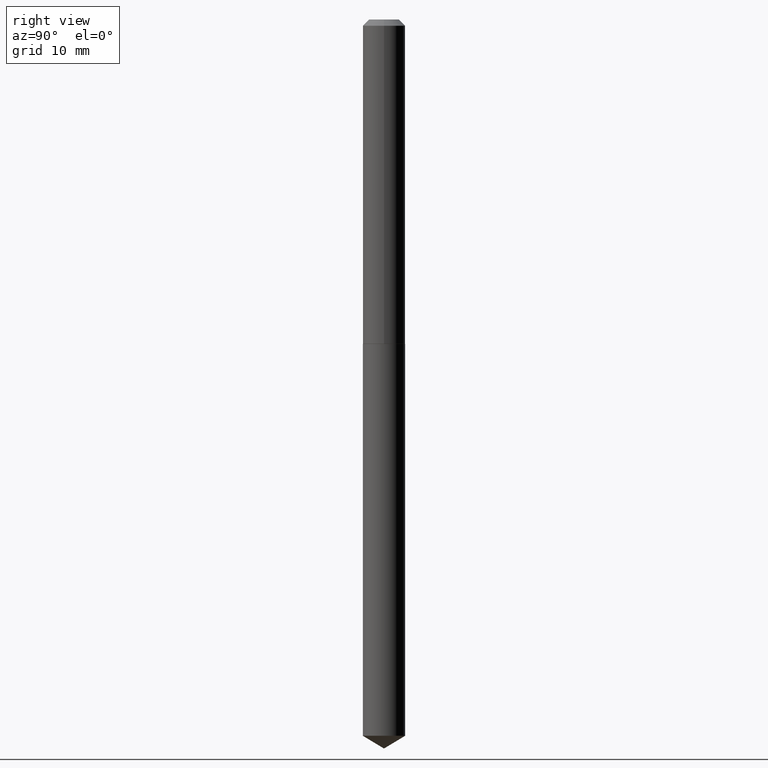
[diagram: clean part render]
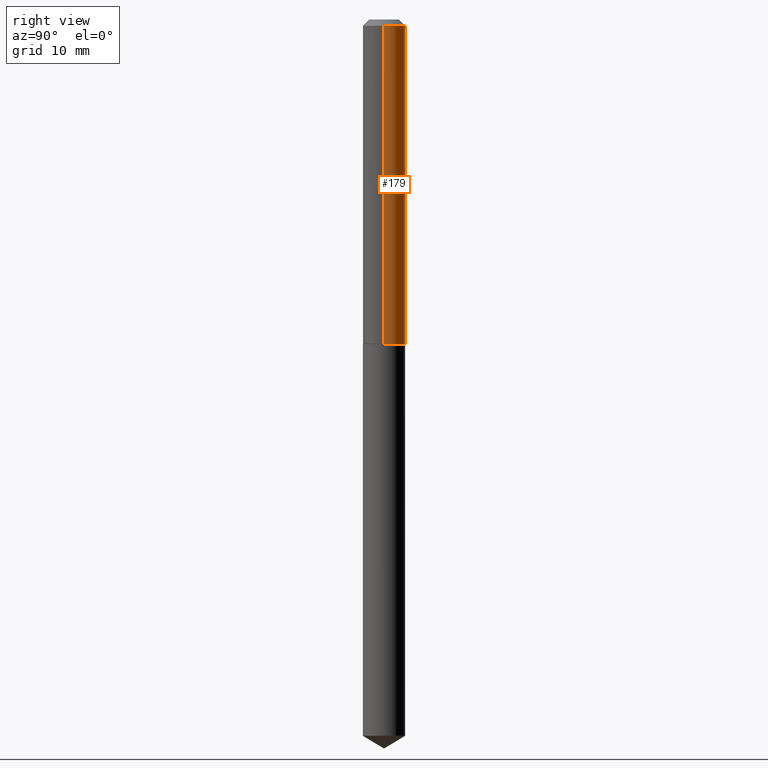
[diagram: same view with one face highlighted and labeled with its STEP entity id]
A machine part, right view. The second image highlights one B-rep face of the part: STEP entity #179.
In plain terms, the highlighted cylindrical surface (edge-blend (fillet) strip) has radius 2.7 mm, axis along (-0, 0, 1).
Its self-contained STEP definition (entity closure, byte-faithful):
#3 = CARTESIAN_POINT ( 'NONE',  ( 0.1063000000000000195, -8.513977244768993380E-16, -0.03125000000000021511 ) ) ;
#4 = VECTOR ( 'NONE', #248, 39.37007874015748143 ) ;
#20 = VERTEX_POINT ( 'NONE', #194 ) ;
#34 = AXIS2_PLACEMENT_3D ( 'NONE', #281, #131, #98 ) ;
#44 = EDGE_CURVE ( 'NONE', #387, #108, #330, .T. ) ;
#58 = DIRECTION ( 'NONE',  ( 1.000000000000000000, -6.982962677686265922E-15, 0.000000000000000000 ) ) ;
#72 = CIRCLE ( 'NONE', #191, 0.1063000000000002276 ) ;
#79 = ORIENTED_EDGE ( 'NONE', *, *, #227, .F. ) ;
#82 = ORIENTED_EDGE ( 'NONE', *, *, #44, .F. ) ;
#88 = DIRECTION ( 'NONE',  ( -2.445468806185136597E-29, 3.491481338843145583E-15, 1.000000000000000000 ) ) ;
#98 = DIRECTION ( 'NONE',  ( 1.000000000000000000, -6.982962677686266711E-15, 4.876176775795935793E-29 ) ) ;
#100 = EDGE_CURVE ( 'NONE', #143, #20, #72, .T. ) ;
#108 = VERTEX_POINT ( 'NONE', #171 ) ;
#119 = LINE ( 'NONE', #384, #221 ) ;
#128 = LINE ( 'NONE', #219, #4 ) ;
#131 = DIRECTION ( 'NONE',  ( -2.445468806185136597E-29, 3.491481338843145583E-15, 1.000000000000000000 ) ) ;
#140 = DIRECTION ( 'NONE',  ( -2.445468806185136877E-29, 3.491481338843145188E-15, 1.000000000000000000 ) ) ;
#143 = VERTEX_POINT ( 'NONE', #290 ) ;
#157 = EDGE_CURVE ( 'NONE', #20, #108, #119, .T. ) ;
#171 = CARTESIAN_POINT ( 'NONE',  ( -0.1063000000000000195, -2.143757314561946763E-15, -0.03125000000000021511 ) ) ;
#179 = ADVANCED_FACE ( 'NONE', ( #357 ), #274, .T. ) ;
#191 = AXIS2_PLACEMENT_3D ( 'NONE', #210, #323, #380 ) ;
#194 = CARTESIAN_POINT ( 'NONE',  ( -0.1063000000000002276, -4.933712765398033723E-15, -1.629399999999999737 ) ) ;
#210 = CARTESIAN_POINT ( 'NONE',  ( 3.984646872798061156E-29, -5.689019693511021444E-15, -1.629399999999999737 ) ) ;
#219 = CARTESIAN_POINT ( 'NONE',  ( 0.1063000000000001166, -7.422889326380509276E-16, 5.183375912671085656E-30 ) ) ;
#221 = VECTOR ( 'NONE', #140, 39.37007874015748143 ) ;
#225 = ORIENTED_EDGE ( 'NONE', *, *, #157, .T. ) ;
#227 = EDGE_CURVE ( 'NONE', #143, #387, #128, .T. ) ;
#248 = DIRECTION ( 'NONE',  ( -2.445468806185136877E-29, 3.491481338843145188E-15, 1.000000000000000000 ) ) ;
#257 = CARTESIAN_POINT ( 'NONE',  ( 7.642090019328603538E-31, -1.091087918388490390E-16, -0.03125000000000021511 ) ) ;
#274 = CYLINDRICAL_SURFACE ( 'NONE', #34, 0.1063000000000001166 ) ;
#281 = CARTESIAN_POINT ( 'NONE',  ( 0.000000000000000000, 0.000000000000000000, 0.000000000000000000 ) ) ;
#289 = ORIENTED_EDGE ( 'NONE', *, *, #100, .T. ) ;
#290 = CARTESIAN_POINT ( 'NONE',  ( 0.1063000000000002276, -6.431308626149072372E-15, -1.629399999999999737 ) ) ;
#323 = DIRECTION ( 'NONE',  ( -2.445468806185136597E-29, 3.491481338843145583E-15, 1.000000000000000000 ) ) ;
#330 = CIRCLE ( 'NONE', #381, 0.1063000000000000195 ) ;
#357 = FACE_OUTER_BOUND ( 'NONE', #375, .T. ) ;
#375 = EDGE_LOOP ( 'NONE', ( #289, #225, #82, #79 ) ) ;
#380 = DIRECTION ( 'NONE',  ( 1.000000000000000000, -6.982962677686263555E-15, 0.000000000000000000 ) ) ;
#381 = AXIS2_PLACEMENT_3D ( 'NONE', #257, #88, #58 ) ;
#384 = CARTESIAN_POINT ( 'NONE',  ( -0.1063000000000001166, 7.553069281129873262E-16, -5.228828000940970663E-30 ) ) ;
#387 = VERTEX_POINT ( 'NONE', #3 ) ;